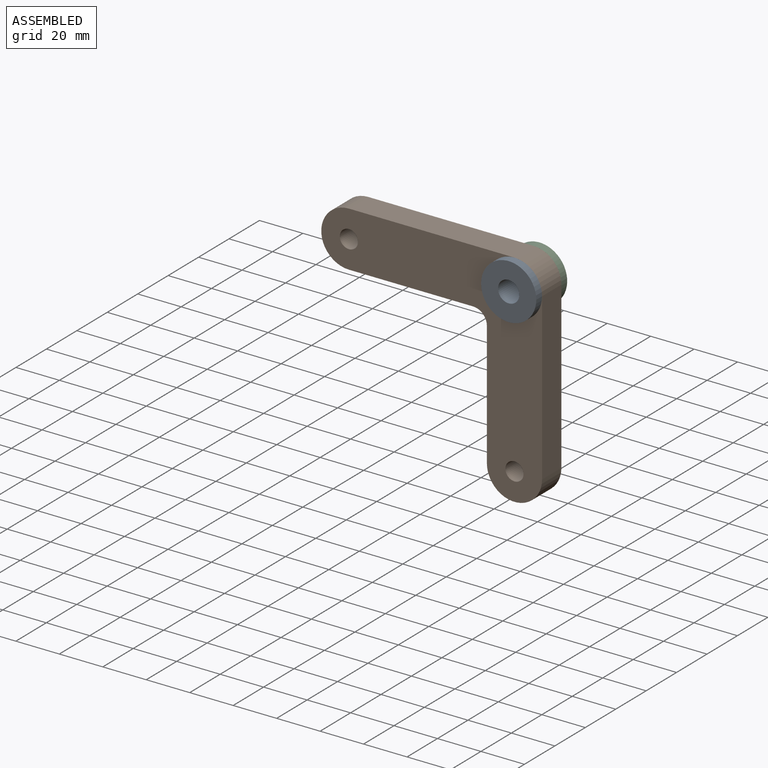
[diagram: assembled view]
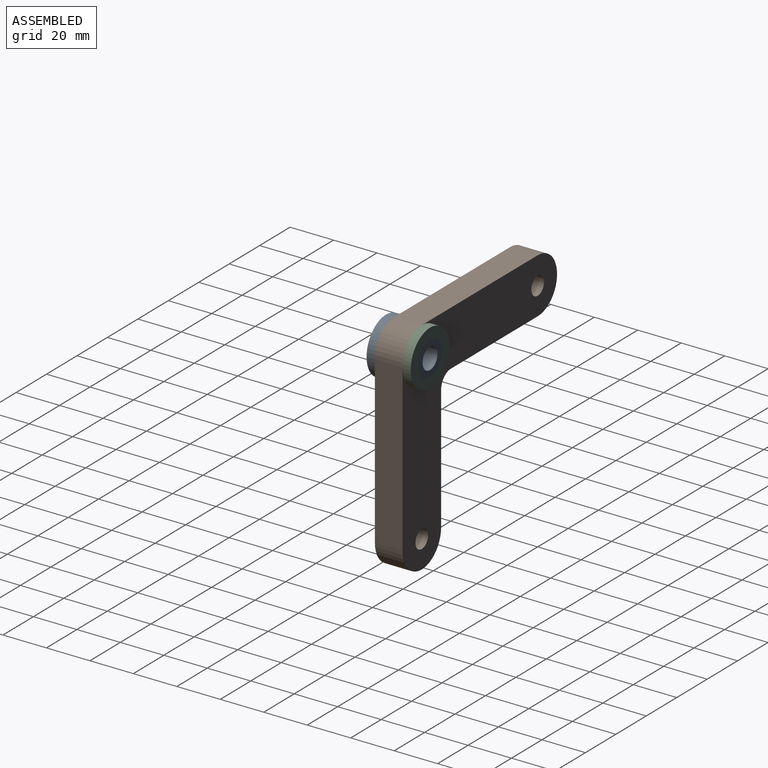
[diagram: assembled view, second angle]
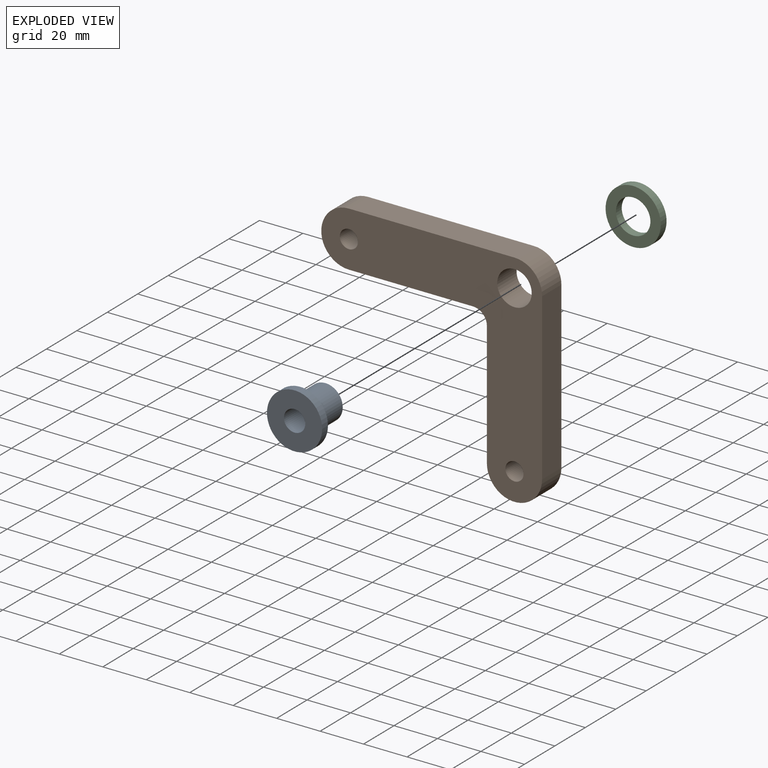
[diagram: exploded view]
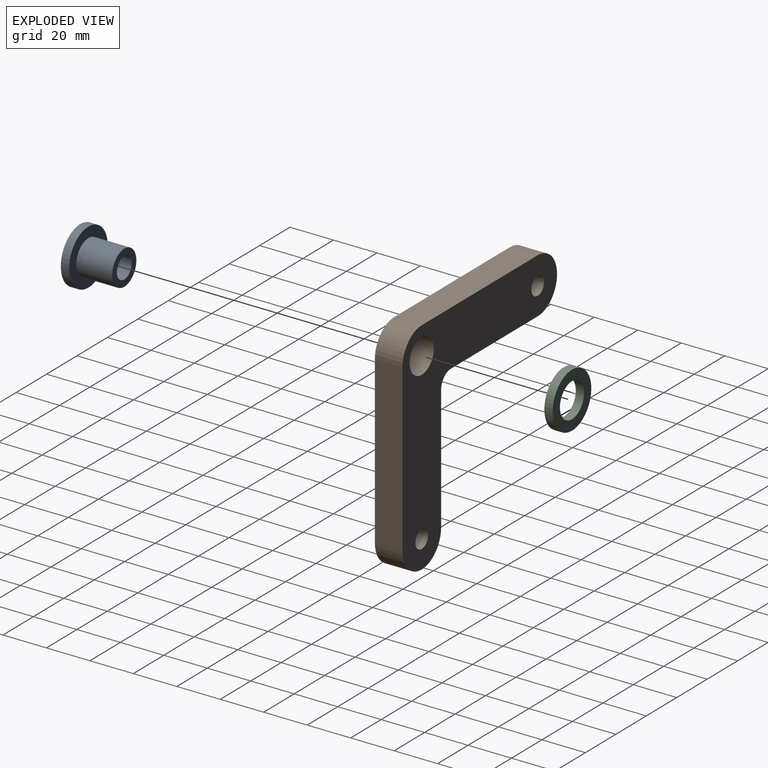
[diagram: exploded view, second angle]
ASSEMBLY  parts=3 mates=2
PART A: 6 faces, bbox 20.3x25.4x25.4 mm
  f0: plane 15.88x15.88mm, normal (1,0,0), area 122.8mm2, adj f1,f5
  f1: cylinder r=7.94mm len=16.51mm, axis (-1,0,0), area 823.4mm2, adj f0,f2
  f2: plane 25.4x25.4mm, normal (1,0,0), area 308.8mm2, adj f1,f3
  f3: cylinder r=12.7mm len=25.4mm, axis (-1,0,0), area 304mm2, adj f2,f4
  f4: plane 25.4x25.4mm, normal (-1,0,0), area 431.6mm2, adj f3,f5
  f5: cylinder r=4.89mm len=20.32mm, axis (-1,0,0), area 624.3mm2, adj f0,f4
PART B: 13 faces, bbox 101.6x12.7x101.6 mm
  f0: plane 76.2x12.7mm, normal (1,0,0), area 967.7mm2, adj f1,f6,f10,f11
  f1: cylinder r=12.7mm len=12.7mm, axis (0,1,0), area 253.4mm2, adj f0,f2,f10,f11
  f2: plane 76.2x12.7mm, normal (0,0,1), area 967.7mm2, adj f1,f3,f10,f11
  f3: cylinder r=12.7mm len=25.4mm, axis (0,1,0), area 506.7mm2, adj f2,f4,f10,f11
  f4: plane 57.15x12.7mm, normal (0,0,-1), area 725.8mm2, adj f3,f10,f11,f12
  f5: plane 57.15x12.7mm, normal (-1,0,0), area 725.8mm2, adj f6,f10,f11,f12
  f6: cylinder r=12.7mm len=25.4mm, axis (0,1,0), area 506.7mm2, adj f0,f5,f10,f11
  f7: cylinder r=4.18mm len=12.7mm, axis (0,1,0), area 333.4mm2, adj f10,f11
  f8: cylinder r=4.18mm len=12.7mm, axis (0,1,0), area 333.4mm2, adj f10,f11
  f9: cylinder r=7.94mm len=15.88mm, axis (0,1,0), area 633.4mm2, adj f10,f11
  f10: plane 101.6x101.6mm, normal (0,-1,0), area 4044.1mm2, adj f0,f1,f2,f3,f4,f5,f6,f7
  f11: plane 101.6x101.6mm, normal (0,1,0), area 4044.1mm2, adj f0,f1,f2,f3,f4,f5,f6,f7
  f12: cylinder r=6.35mm len=12.7mm, axis (0,1,0), area 126.7mm2, adj f4,f5,f10,f11
PART C: 4 faces, bbox 25.4x3.8x25.4 mm
  f0: cylinder r=7.94mm len=15.88mm, axis (0,1,0), area 190mm2, adj f2,f3
  f1: cylinder r=12.7mm len=25.4mm, axis (0,1,0), area 304mm2, adj f2,f3
  f2: plane 25.4x25.4mm, normal (0,-1,0), area 308.8mm2, adj f0,f1
  f3: plane 25.4x25.4mm, normal (0,1,0), area 308.8mm2, adj f0,f1
PLACE A rot(axis=(0.58,0.58,0.58),120deg) t=(-34.63,-37.73,29.25)mm
PLACE B t=(-34.63,-41.54,29.25)mm
PLACE C t=(-34.63,-37.73,29.25)mm
MATE fastened C.f1 <-> B.f9  axis (0,-1,0) through (-34.63,-41.54,29.25)mm
MATE fastened A.f1 <-> B.f9  axis (0,1,0) through (-34.63,-54.24,29.25)mm
